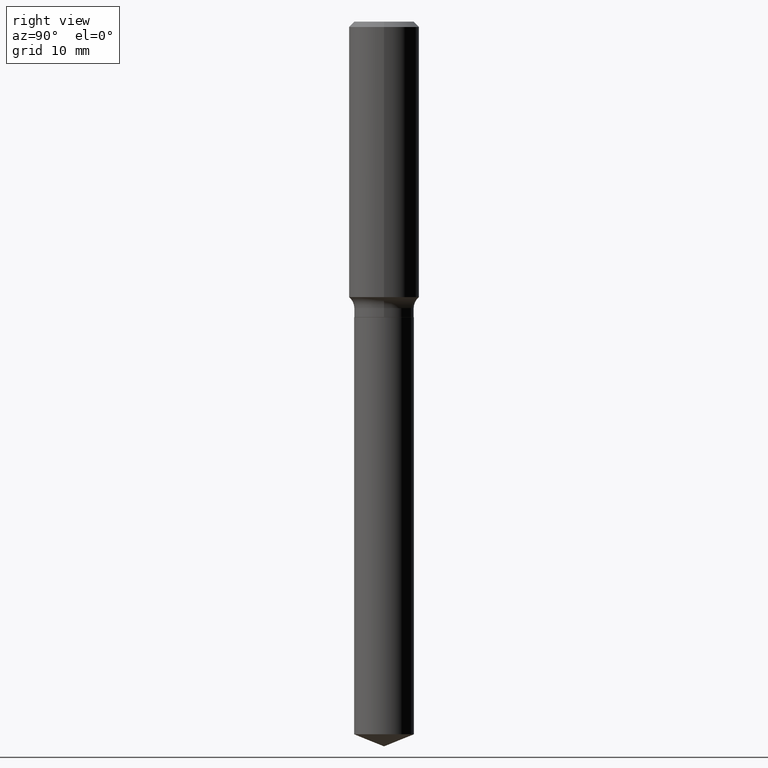
[diagram: clean part render]
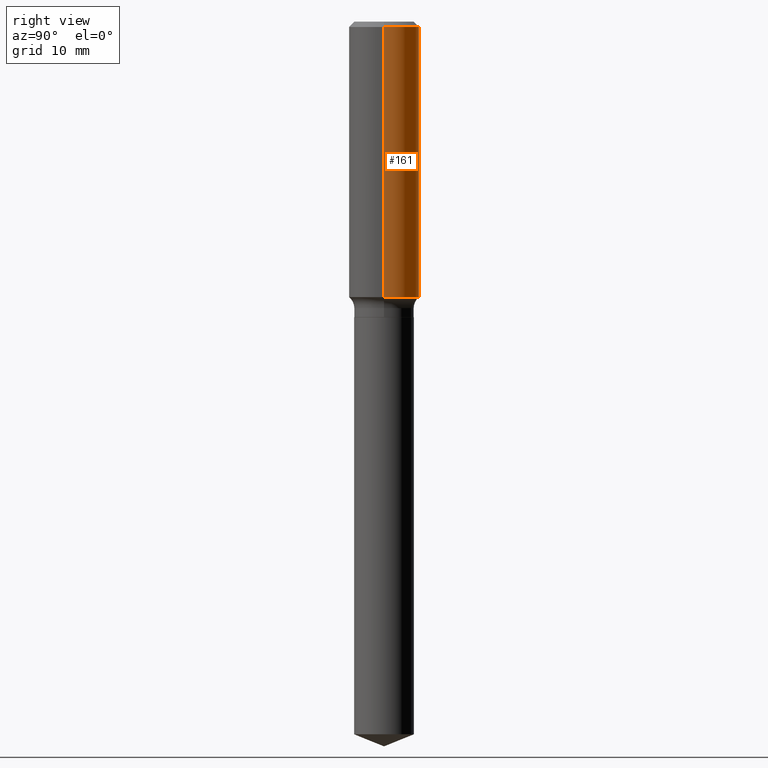
[diagram: same view with one face highlighted and labeled with its STEP entity id]
A machine part, right view. The second image highlights one B-rep face of the part: STEP entity #161.
In plain terms, the highlighted cylindrical surface (edge-blend (fillet) strip) has radius 5 mm, axis along (-0, 0, 1).
Its self-contained STEP definition (entity closure, byte-faithful):
#25 = VERTEX_POINT ( 'NONE', #468 ) ;
#26 = CARTESIAN_POINT ( 'NONE',  ( -0.1968500000000002192, -3.984016639519789812E-15, -1.541672285336354919 ) ) ;
#72 = CARTESIAN_POINT ( 'NONE',  ( -0.1968500000000001360, 1.398703375343758182E-15, -9.682923725166790684E-30 ) ) ;
#75 = AXIS2_PLACEMENT_3D ( 'NONE', #222, #294, #398 ) ;
#101 = FACE_OUTER_BOUND ( 'NONE', #359, .T. ) ;
#106 = CARTESIAN_POINT ( 'NONE',  ( 0.1968500000000000527, -1.477690918335233688E-15, -0.02952750000000020289 ) ) ;
#114 = LINE ( 'NONE', #72, #305 ) ;
#143 = CARTESIAN_POINT ( 'NONE',  ( 0.1968500000000001360, -1.374596203102542594E-15, 9.598753983154306463E-30 ) ) ;
#160 = CIRCLE ( 'NONE', #191, 0.1968500000000000527 ) ;
#161 = ADVANCED_FACE ( 'NONE', ( #101 ), #254, .T. ) ;
#174 = AXIS2_PLACEMENT_3D ( 'NONE', #216, #357, #180 ) ;
#175 = VECTOR ( 'NONE', #405, 39.37007874015748143 ) ;
#180 = DIRECTION ( 'NONE',  ( 1.000000000000000000, -6.982962677686266711E-15, 4.876176775795935793E-29 ) ) ;
#184 = DIRECTION ( 'NONE',  ( -2.445468806185136877E-29, 3.491481338843145188E-15, 1.000000000000000000 ) ) ;
#186 = DIRECTION ( 'NONE',  ( 1.000000000000000000, -6.982962677686266711E-15, 0.000000000000000000 ) ) ;
#191 = AXIS2_PLACEMENT_3D ( 'NONE', #258, #399, #186 ) ;
#198 = ORIENTED_EDGE ( 'NONE', *, *, #326, .F. ) ;
#216 = CARTESIAN_POINT ( 'NONE',  ( 0.000000000000000000, 0.000000000000000000, 0.000000000000000000 ) ) ;
#221 = EDGE_CURVE ( 'NONE', #351, #25, #114, .T. ) ;
#222 = CARTESIAN_POINT ( 'NONE',  ( 3.770111483150206661E-29, -5.382720014863548388E-15, -1.541672285336354919 ) ) ;
#224 = VERTEX_POINT ( 'NONE', #106 ) ;
#227 = EDGE_CURVE ( 'NONE', #224, #25, #160, .T. ) ;
#254 = CYLINDRICAL_SURFACE ( 'NONE', #174, 0.1968500000000001360 ) ;
#258 = CARTESIAN_POINT ( 'NONE',  ( 7.220858017463212113E-31, -1.030947152326916979E-16, -0.02952750000000020289 ) ) ;
#267 = ORIENTED_EDGE ( 'NONE', *, *, #227, .F. ) ;
#268 = CIRCLE ( 'NONE', #75, 0.1968500000000002470 ) ;
#294 = DIRECTION ( 'NONE',  ( -2.445468806185136597E-29, 3.491481338843145583E-15, 1.000000000000000000 ) ) ;
#305 = VECTOR ( 'NONE', #184, 39.37007874015748143 ) ;
#322 = LINE ( 'NONE', #143, #175 ) ;
#326 = EDGE_CURVE ( 'NONE', #367, #224, #322, .T. ) ;
#341 = EDGE_CURVE ( 'NONE', #367, #351, #268, .T. ) ;
#351 = VERTEX_POINT ( 'NONE', #26 ) ;
#357 = DIRECTION ( 'NONE',  ( -2.445468806185136597E-29, 3.491481338843145583E-15, 1.000000000000000000 ) ) ;
#359 = EDGE_LOOP ( 'NONE', ( #483, #449, #267, #198 ) ) ;
#367 = VERTEX_POINT ( 'NONE', #394 ) ;
#394 = CARTESIAN_POINT ( 'NONE',  ( 0.1968500000000002192, -6.757316217966091574E-15, -1.541672285336354919 ) ) ;
#398 = DIRECTION ( 'NONE',  ( 1.000000000000000000, -6.982962677686269866E-15, 0.000000000000000000 ) ) ;
#399 = DIRECTION ( 'NONE',  ( -2.445468806185136597E-29, 3.491481338843145583E-15, 1.000000000000000000 ) ) ;
#405 = DIRECTION ( 'NONE',  ( -2.445468806185136877E-29, 3.491481338843145188E-15, 1.000000000000000000 ) ) ;
#449 = ORIENTED_EDGE ( 'NONE', *, *, #221, .T. ) ;
#468 = CARTESIAN_POINT ( 'NONE',  ( -0.1968500000000000527, -1.344203989704361658E-15, -0.02952750000000020289 ) ) ;
#483 = ORIENTED_EDGE ( 'NONE', *, *, #341, .T. ) ;